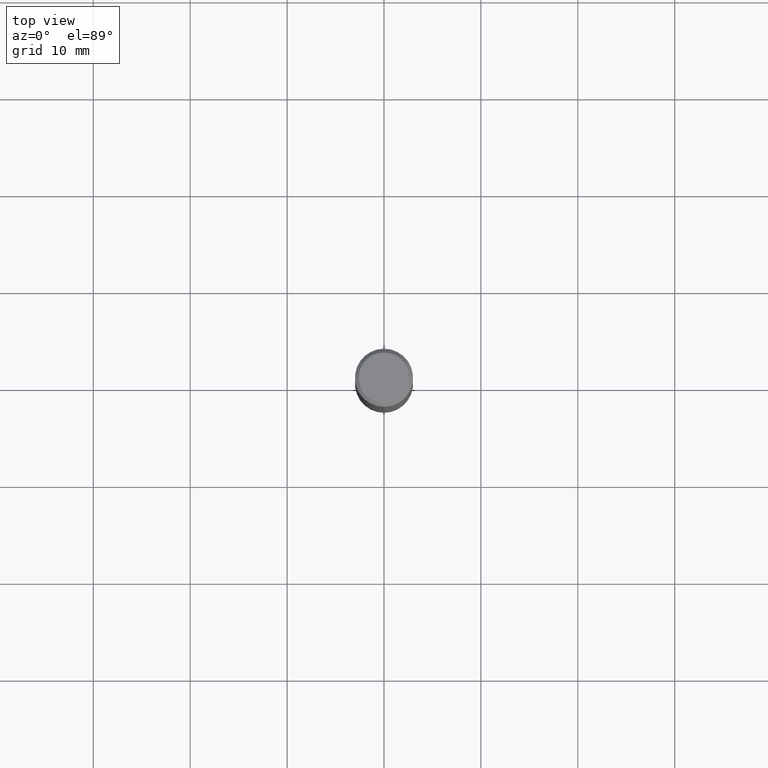
[diagram: clean part render]
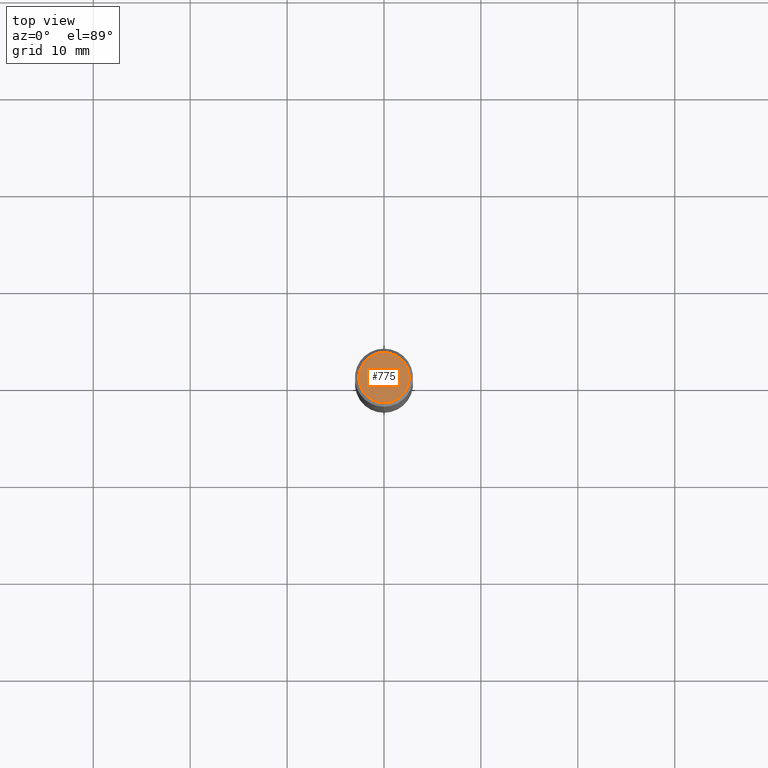
[diagram: same view with one face highlighted and labeled with its STEP entity id]
A machine part, top view. The second image highlights one B-rep face of the part: STEP entity #775.
In plain terms, the highlighted planar face has unit normal (-0, 0, 1).
Its self-contained STEP definition (entity closure, byte-faithful):
#513=VERTEX_POINT('',#1085);
#525=VERTEX_POINT('',#1098);
#605=EDGE_CURVE('',#513,#525,#1185,.T.);
#775=ADVANCED_FACE('',(#1371),#1372,.T.);
#819=EDGE_CURVE('',#525,#513,#1422,.T.);
#1085=CARTESIAN_POINT('',(0.0,2.6,0.0));
#1098=CARTESIAN_POINT('',(3.18397651993818E-016,-2.6,0.0));
#1185=CIRCLE('',#5224,2.6);
#1371=FACE_OUTER_BOUND('',#6416,.T.);
#1372=PLANE('',#6417);
#1422=CIRCLE('',#7563,2.6);
#5224=AXIS2_PLACEMENT_3D('',#7955,#7956,#7957);
#6416=EDGE_LOOP('',(#8158,#8159));
#6417=AXIS2_PLACEMENT_3D('',#8160,#8161,#8162);
#7563=AXIS2_PLACEMENT_3D('',#8220,#8221,#8222);
#7955=CARTESIAN_POINT('',(0.0,0.0,0.0));
#7956=DIRECTION('',(0.0,0.0,-1.0));
#7957=DIRECTION('',(0.0,1.0,0.0));
#8158=ORIENTED_EDGE('',*,*,#605,.F.);
#8159=ORIENTED_EDGE('',*,*,#819,.F.);
#8160=CARTESIAN_POINT('',(0.0,1.3,0.0));
#8161=DIRECTION('',(-0.0,0.0,1.0));
#8162=DIRECTION('',(0.0,-1.0,0.0));
#8220=CARTESIAN_POINT('',(0.0,0.0,0.0));
#8221=DIRECTION('',(0.0,0.0,-1.0));
#8222=DIRECTION('',(0.0,1.0,0.0));